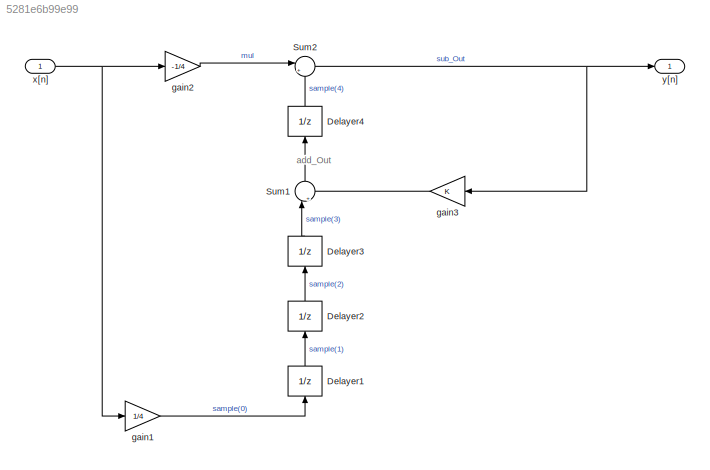
MODEL slx_5281e6b99e99
KIND model
CONFIG AbsTol = auto
CONFIG EnableMultiTasking = off
CONFIG FixedStep = auto
CONFIG MaxStep = auto
CONFIG MinStep = auto
CONFIG RelTol = 1e-3
CONFIG SampleTimeConstraint = Unconstrained
CONFIG SolverName = VariableStepAuto
CONFIG StartTime = 0.0
CONFIG StopTime = 10.0
BLOCK [UnitDelay] Delayer1
  HasFrameUpgradeWarning = on
  NameLocation = right
  SampleTime = -1
BLOCK [UnitDelay] Delayer2
  HasFrameUpgradeWarning = on
  NameLocation = right
  SampleTime = -1
BLOCK [UnitDelay] Delayer3
  HasFrameUpgradeWarning = on
  NameLocation = right
  SampleTime = -1
BLOCK [UnitDelay] Delayer4
  HasFrameUpgradeWarning = on
  NameLocation = right
  SampleTime = -1
  StateName = z^_1
BLOCK [Sum] Sum1
  Inputs = |++
  NameLocation = right
  Ports = [2, 1]
BLOCK [Sum] Sum2
  Inputs = |++
  Ports = [2, 1]
BLOCK [Gain] gain1
  Gain = 1/4
BLOCK [Gain] gain2
  Gain = -1/4
BLOCK [Gain] gain3
  NameLocation = top
BLOCK [Inport] x[n]
BLOCK [Outport] y[n]
ANNOTATION (root): add_Out
LINE Delayer1:1 -> Delayer2:1
LINE Delayer2:1 -> Delayer3:1
LINE Delayer3:1 -> Sum1:1
LINE Delayer4:1 -> Sum2:2
LINE Sum1:1 -> Delayer4:1
NET Sum2:1 -> gain3:1, y[n]:1
LINE gain1:1 -> Delayer1:1
LINE gain2:1 -> Sum2:1
LINE gain3:1 -> Sum1:2
NET x[n]:1 -> gain1:1, gain2:1
note: NET lines group one-source signal fan-out (src -> all destinations, sorted); 1:1 wires keep LINE
